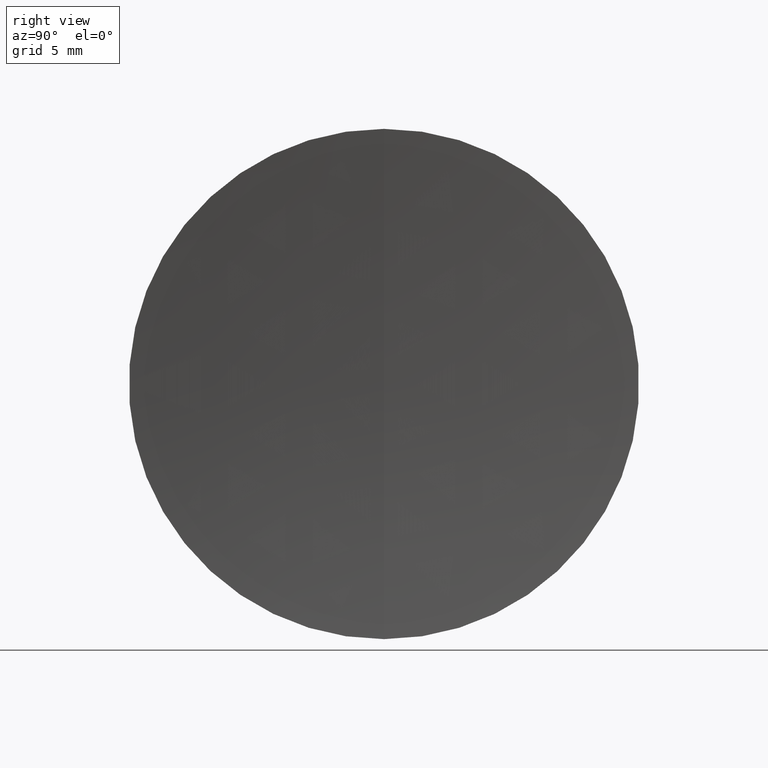
[diagram: clean part render]
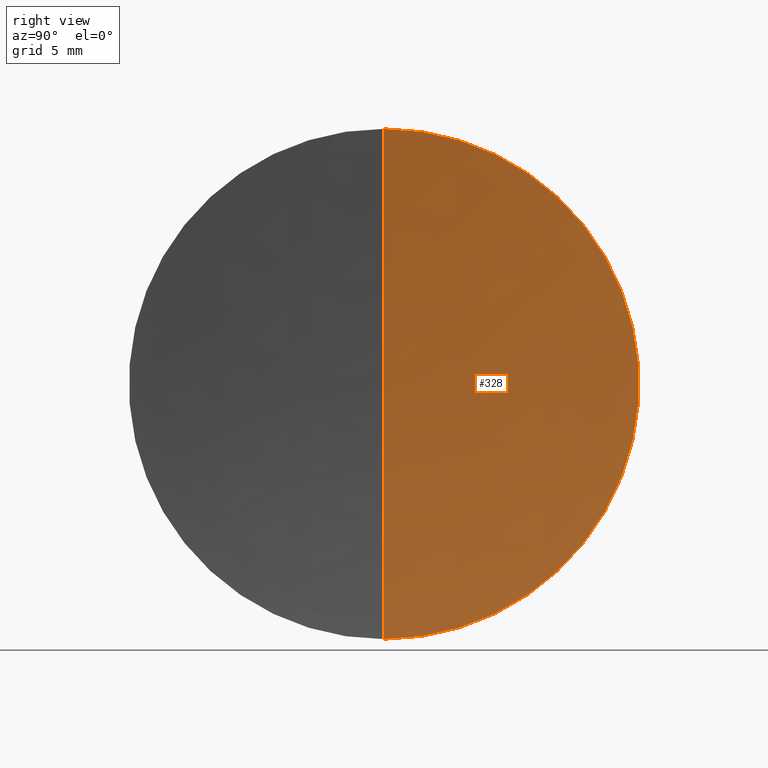
[diagram: same view with one face highlighted and labeled with its STEP entity id]
A machine part, right view. The second image highlights one B-rep face of the part: STEP entity #328.
In plain terms, the highlighted spherical surface has radius 111.51 mm.
Its self-contained STEP definition (entity closure, byte-faithful):
#1 = VERTEX_POINT ( 'NONE', #91 ) ;
#24 = AXIS2_PLACEMENT_3D ( 'NONE', #90, #275, #335 ) ;
#26 = CIRCLE ( 'NONE', #299, 12.69999999999999200 ) ;
#33 = AXIS2_PLACEMENT_3D ( 'NONE', #204, #45, #231 ) ;
#41 = CARTESIAN_POINT ( 'NONE',  ( 338.6678479171338800, 0.0000000000000000000, 0.0000000000000000000 ) ) ;
#45 = DIRECTION ( 'NONE',  ( 0.0000000000000000000, -1.000000000000000000, -1.224646799147353200E-016 ) ) ;
#67 = EDGE_CURVE ( 'NONE', #114, #1, #187, .T. ) ;
#72 = DIRECTION ( 'NONE',  ( 0.0000000000000000000, 0.0000000000000000000, 1.000000000000000000 ) ) ;
#90 = CARTESIAN_POINT ( 'NONE',  ( 449.4522786824721800, 0.0000000000000000000, 0.0000000000000000000 ) ) ;
#91 = CARTESIAN_POINT ( 'NONE',  ( 337.9422786824720800, 0.0000000000000000000, -6.828018228646076000E-015 ) ) ;
#114 = VERTEX_POINT ( 'NONE', #166 ) ;
#128 = DIRECTION ( 'NONE',  ( 0.0000000000000000000, 0.0000000000000000000, -1.000000000000000000 ) ) ;
#143 = CARTESIAN_POINT ( 'NONE',  ( 449.4522786824721800, 0.0000000000000000000, 0.0000000000000000000 ) ) ;
#144 = ORIENTED_EDGE ( 'NONE', *, *, #213, .F. ) ;
#157 = SPHERICAL_SURFACE ( 'NONE', #179, 111.5100000000001300 ) ;
#159 = CIRCLE ( 'NONE', #33, 111.5100000000001300 ) ;
#162 = EDGE_LOOP ( 'NONE', ( #144, #178, #322 ) ) ;
#166 = CARTESIAN_POINT ( 'NONE',  ( 338.6678479171338800, 1.555301434917139000E-015, -12.69999999999999200 ) ) ;
#178 = ORIENTED_EDGE ( 'NONE', *, *, #249, .T. ) ;
#179 = AXIS2_PLACEMENT_3D ( 'NONE', #143, #209, #128 ) ;
#187 = CIRCLE ( 'NONE', #24, 111.5100000000001300 ) ;
#188 = VERTEX_POINT ( 'NONE', #199 ) ;
#199 = CARTESIAN_POINT ( 'NONE',  ( 338.6678479171338800, 0.0000000000000000000, 12.69999999999999200 ) ) ;
#204 = CARTESIAN_POINT ( 'NONE',  ( 449.4522786824721800, 0.0000000000000000000, 0.0000000000000000000 ) ) ;
#209 = DIRECTION ( 'NONE',  ( -0.0000000000000000000, -1.000000000000000000, -0.0000000000000000000 ) ) ;
#213 = EDGE_CURVE ( 'NONE', #188, #114, #26, .T. ) ;
#229 = DIRECTION ( 'NONE',  ( -1.000000000000000000, -0.0000000000000000000, -0.0000000000000000000 ) ) ;
#231 = DIRECTION ( 'NONE',  ( 0.0000000000000000000, 1.224646799147353200E-016, -1.000000000000000000 ) ) ;
#249 = EDGE_CURVE ( 'NONE', #188, #1, #159, .T. ) ;
#275 = DIRECTION ( 'NONE',  ( 0.0000000000000000000, 1.000000000000000000, -0.0000000000000000000 ) ) ;
#276 = FACE_OUTER_BOUND ( 'NONE', #162, .T. ) ;
#299 = AXIS2_PLACEMENT_3D ( 'NONE', #41, #229, #72 ) ;
#322 = ORIENTED_EDGE ( 'NONE', *, *, #67, .F. ) ;
#328 = ADVANCED_FACE ( 'NONE', ( #276 ), #157, .F. ) ;
#335 = DIRECTION ( 'NONE',  ( 0.0000000000000000000, 0.0000000000000000000, 1.000000000000000000 ) ) ;